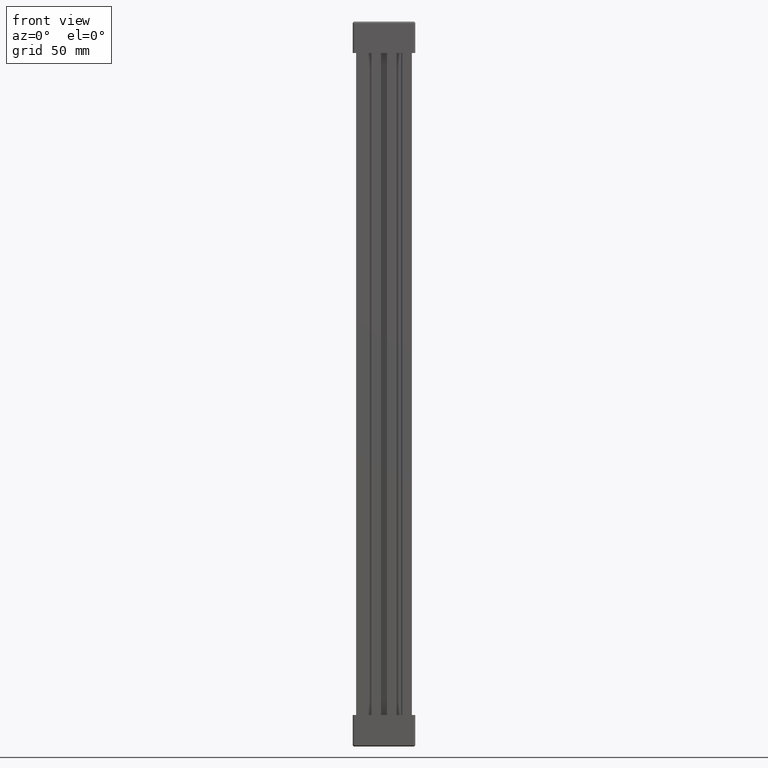
[diagram: clean part render]
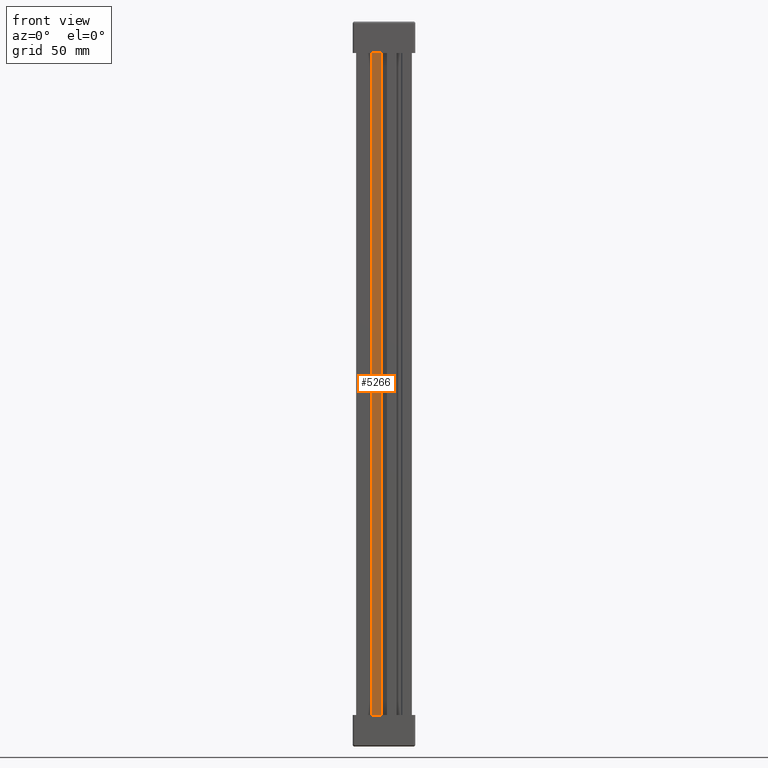
[diagram: same view with one face highlighted and labeled with its STEP entity id]
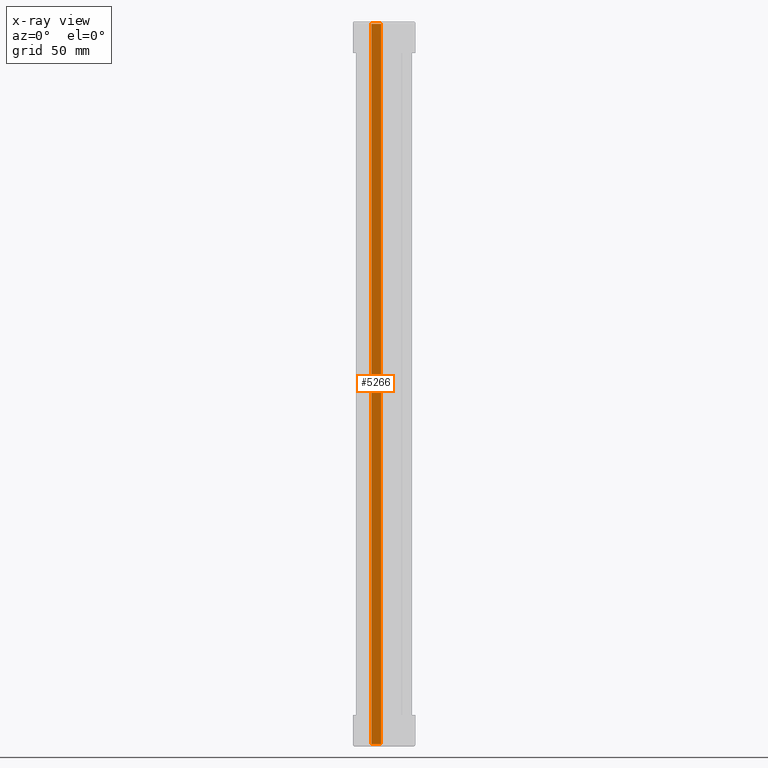
[diagram: x-ray of the same camera — body ghosted, the highlighted face saturated]
A machine part, front view. The second image highlights one B-rep face of the part: STEP entity #5266.
The next image is the same camera in x-ray: the body ghosted, the highlighted face saturated — about 0% of this face is hidden behind the body in this view.
In plain terms, the highlighted planar face has unit normal (0, 1, 0).
Its self-contained STEP definition (entity closure, byte-faithful):
#5266 = ADVANCED_FACE ( 'NONE', ( #18138 ), #18128, .F. ) ;
#5591 = EDGE_CURVE ( 'NONE', #29462, #29533, #8193, .T. ) ;
#5795 = EDGE_CURVE ( 'NONE', #29462, #30391, #9851, .T. ) ;
#5798 = EDGE_CURVE ( 'NONE', #30391, #30431, #9842, .T. ) ;
#5805 = EDGE_CURVE ( 'NONE', #30431, #29533, #9881, .T. ) ;
#8167 = CARTESIAN_POINT ( 'NONE',  ( 10.50000000000006400, 0.0000000000000000000, 306.0000000000000000 ) ) ;
#8193 = LINE ( 'NONE', #8167, #32982 ) ;
#8198 = DIRECTION ( 'NONE',  ( 0.0000000000000000000, 0.0000000000000000000, 1.000000000000000000 ) ) ;
#9830 = CARTESIAN_POINT ( 'NONE',  ( 6.500000000000061300, 0.0000000000000000000, 306.0000000000000000 ) ) ;
#9842 = LINE ( 'NONE', #9830, #33130 ) ;
#9851 = LINE ( 'NONE', #9857, #33131 ) ;
#9854 = DIRECTION ( 'NONE',  ( 0.0000000000000000000, 0.0000000000000000000, 1.000000000000000000 ) ) ;
#9856 = DIRECTION ( 'NONE',  ( -1.000000000000000000, -0.0000000000000000000, -3.163580508669383600E-013 ) ) ;
#9857 = CARTESIAN_POINT ( 'NONE',  ( 11.75000000020468400, 0.0000000000000000000, 3.719247132494274400E-012 ) ) ;
#9881 = LINE ( 'NONE', #9897, #33181 ) ;
#9884 = DIRECTION ( 'NONE',  ( 1.000000000000000000, -0.0000000000000000000, -3.163580508669383600E-013 ) ) ;
#9897 = CARTESIAN_POINT ( 'NONE',  ( 11.75000000020468400, 0.0000000000000000000, 303.9999999999962500 ) ) ;
#18101 = DIRECTION ( 'NONE',  ( 0.0000000000000000000, 1.000000000000000000, 0.0000000000000000000 ) ) ;
#18128 = PLANE ( 'NONE',  #33757 ) ;
#18129 = DIRECTION ( 'NONE',  ( 0.0000000000000000000, -0.0000000000000000000, 1.000000000000000000 ) ) ;
#18138 = FACE_OUTER_BOUND ( 'NONE', #31026, .T. ) ;
#18144 = CARTESIAN_POINT ( 'NONE',  ( 11.74999999999998400, 0.0000000000000000000, 306.0000000000000000 ) ) ;
#22686 = ORIENTED_EDGE ( 'NONE', *, *, #5798, .F. ) ;
#22705 = ORIENTED_EDGE ( 'NONE', *, *, #5795, .F. ) ;
#22710 = ORIENTED_EDGE ( 'NONE', *, *, #5805, .F. ) ;
#22712 = ORIENTED_EDGE ( 'NONE', *, *, #5591, .T. ) ;
#24714 = CARTESIAN_POINT ( 'NONE',  ( 6.500000000000061300, 0.0000000000000000000, 303.9999999999985800 ) ) ;
#25076 = CARTESIAN_POINT ( 'NONE',  ( 6.500000000000061300, 0.0000000000000000000, 2.056882442104255900E-012 ) ) ;
#25952 = CARTESIAN_POINT ( 'NONE',  ( 10.50000000000006400, 0.0000000000000000000, 3.326089403855736100E-012 ) ) ;
#26058 = CARTESIAN_POINT ( 'NONE',  ( 10.50000000000006400, 0.0000000000000000000, 303.9999999999966500 ) ) ;
#29462 = VERTEX_POINT ( 'NONE', #25952 ) ;
#29533 = VERTEX_POINT ( 'NONE', #26058 ) ;
#30391 = VERTEX_POINT ( 'NONE', #25076 ) ;
#30431 = VERTEX_POINT ( 'NONE', #24714 ) ;
#31026 = EDGE_LOOP ( 'NONE', ( #22710, #22686, #22705, #22712 ) ) ;
#32982 = VECTOR ( 'NONE', #8198, 1000.000000000000000 ) ;
#33130 = VECTOR ( 'NONE', #9854, 1000.000000000000000 ) ;
#33131 = VECTOR ( 'NONE', #9856, 1000.000000000000000 ) ;
#33181 = VECTOR ( 'NONE', #9884, 1000.000000000000000 ) ;
#33757 = AXIS2_PLACEMENT_3D ( 'NONE', #18144, #18101, #18129 ) ;